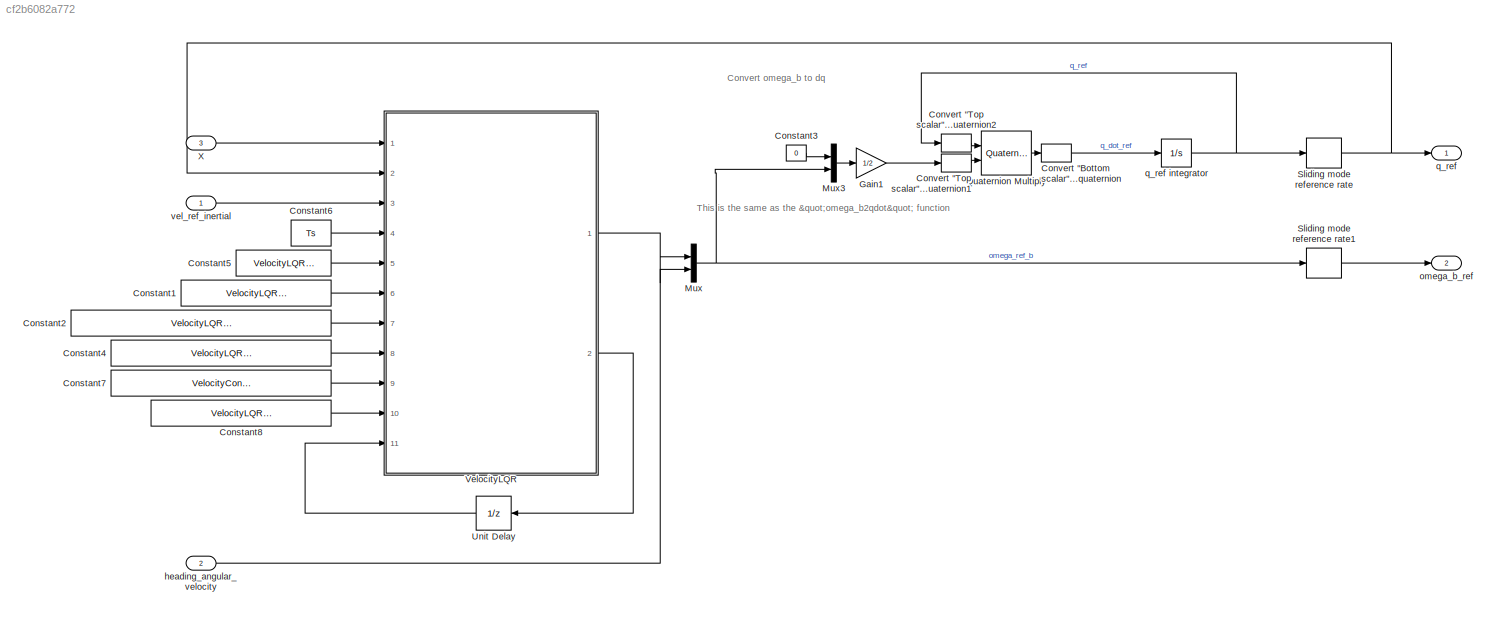
MODEL slx_cf2b6082a772
KIND model
CONFIG AbsTol = auto
CONFIG EnableMultiTasking = off
CONFIG FixedStep = auto
CONFIG InitFcn = Constants_Kugle\nConstants_nominal\n\nParameters_Controllers\nload('VelocityLQRgain.mat');
CONFIG MaxStep = 1e-2
CONFIG MinStep = auto
CONFIG PreLoadFcn = modelDir = fileparts(get_param(bdroot, 'FileName'));\naddpath(fullfile(modelDir,'../../Parameters'));\naddpath(fullfile(modelDir,'../../Controllers/VelocityLQR'));\naddpath(fullfile(modelDir,'../../Controllers/VelocityLQR/generated'));\n\nConstants_Kugle\nConstants_nominal\n\nParameters_Controllers\nload('VelocityLQRgain.mat');
CONFIG RelTol = 1e-5
CONFIG SampleTimeConstraint = Unconstrained
CONFIG Solver = VariableStepAuto
CONFIG SolverName = VariableStepAuto
CONFIG StartTime = 0.0
CONFIG StopTime = 10.0
BLOCK [Constant] Constant1
  SampleTime = -1
  Value = VelocityLQR_IntegralEnabled
BLOCK [Constant] Constant2
  SampleTime = -1
  Value = VelocityLQR_PositionControlAtZeroVelocityReference
BLOCK [Constant] Constant3
  Value = 0
BLOCK [Constant] Constant4
  SampleTime = -1
  Value = VelocityLQR_IntegratorPowerupStabilizeTime
BLOCK [Constant] Constant5
  SampleTime = -1
  Value = VelocityLQRgain
BLOCK [Constant] Constant6
  SampleTime = -1
  Value = Ts
BLOCK [Constant] Constant7
  SampleTime = -1
  Value = VelocityController_StabilizationDetectionVelocity
BLOCK [Constant] Constant8
  SampleTime = -1
  Value = VelocityLQR_MaximumKickinVelocity
BLOCK [Selector] Convert "Bottom scalar" quaternion to "Top scalar" quaternion
  IndexOptions = Index vector (dialog)
  Indices = [4 1 2 3]
  InputPortWidth = 4
  OutputSizes = 1
  Ports = [1, 1]
BLOCK [Selector] Convert "Top scalar" quaternion to "Bottom scalar" quaternion1
  IndexOptions = Index vector (dialog)
  Indices = [2 3 4 1]
  InputPortWidth = 4
  OutputSizes = 1
  Ports = [1, 1]
BLOCK [Selector] Convert "Top scalar" quaternion to "Bottom scalar" quaternion2
  IndexOptions = Index vector (dialog)
  Indices = [2 3 4 1]
  InputPortWidth = 4
  OutputSizes = 1
  Ports = [1, 1]
BLOCK [Gain] Gain1
  Gain = 1/2
  OutDataTypeStr = Inherit: Inherit via internal rule
  ParamDataTypeStr = Inherit: Inherit via internal rule
  SaturateOnIntegerOverflow = off
BLOCK [Mux] Mux
  DisplayOption = bar
  Inputs = 2
  Ports = [2, 1]
BLOCK [Mux] Mux3
  DisplayOption = bar
  Inputs = 2
  Ports = [2, 1]
BLOCK [Reference] Quaternion Multiply  REF=qlib/Quaternion  (lib defined in mdl_ab4d631060dc, slx_f623738634e3)
Multiply
  Ports = [2, 1]
  SourceBlock = qlib/Quaternion\nMultiply
  SourceType = Quaternion Multiply
BLOCK [ZeroOrderHold] Sliding mode reference rate
  SampleTime = Ts
BLOCK [ZeroOrderHold] Sliding mode reference rate1
  SampleTime = Ts
BLOCK [UnitDelay] Unit Delay
  InitialCondition = [0;0]
  InputProcessing = Elements as channels (sample based)
  SampleTime = Ts
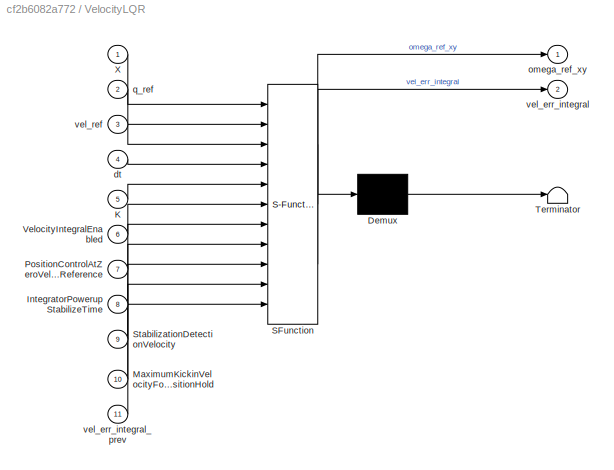
BLOCK [SubSystem] VelocityLQR
  ErrorFcn = Stateflow.Translate.translate
  MinAlgLoopOccurrences = on
  PermitHierarchicalResolution = ExplicitOnly
  Ports = [11, 2]
  RequestExecContextInheritance = off
  SFBlockType = MATLAB Function
  SystemSampleTime = Ts
  TreatAsAtomicUnit = on
BLOCK [Demux] VelocityLQR/ Demux 
  Outputs = 1
  Ports = [1, 1]
BLOCK [S-Function] VelocityLQR/ SFunction 
  EnableBusSupport = on
  FunctionName = sf_sfun
  PortCounts = [11 3]
  Ports = [11, 3]
  SFcnIsStateOwnerBlock = off
  SFunctionDeploymentMode = off
  Tag = Stateflow S-Function Velocity_LQR 2
BLOCK [Terminator] VelocityLQR/ Terminator 
BLOCK [Inport] VelocityLQR/IntegratorPowerupStabilizeTime
  IconDisplay = Port number
  Port = 8
BLOCK [Inport] VelocityLQR/K
  IconDisplay = Port number
  Port = 5
BLOCK [Inport] VelocityLQR/MaximumKickinVelocityForPositionHold
  IconDisplay = Port number
  Port = 10
BLOCK [Inport] VelocityLQR/PositionControlAtZeroVelocityReference
  IconDisplay = Port number
  Port = 7
BLOCK [Inport] VelocityLQR/StabilizationDetectionVelocity
  IconDisplay = Port number
  Port = 9
BLOCK [Inport] VelocityLQR/VelocityIntegralEnabled
  IconDisplay = Port number
  Port = 6
BLOCK [Inport] VelocityLQR/X
  IconDisplay = Port number
BLOCK [Inport] VelocityLQR/dt
  IconDisplay = Port number
  Port = 4
BLOCK [Outport] VelocityLQR/omega_ref_xy
  IconDisplay = Port number
BLOCK [Inport] VelocityLQR/q_ref
  IconDisplay = Port number
  Port = 2
BLOCK [Outport] VelocityLQR/vel_err_integral
  IconDisplay = Port number
  Port = 2
BLOCK [Inport] VelocityLQR/vel_err_integral_prev
  IconDisplay = Port number
  Port = 11
BLOCK [Inport] VelocityLQR/vel_ref
  IconDisplay = Port number
  Port = 3
BLOCK [Inport] X
  IconDisplay = Port number
  Port = 3
  PortDimensions = 12
BLOCK [Inport] heading_angular_velocity
  IconDisplay = Port number
  Port = 2
  PortDimensions = 1
BLOCK [Outport] omega_b_ref
  IconDisplay = Port number
  Port = 2
BLOCK [Outport] q_ref
  IconDisplay = Port number
BLOCK [Integrator] q_ref integrator
  InitialCondition = x_init(3:6)
  Ports = [1, 1]
BLOCK [Inport] vel_ref_inertial
  IconDisplay = Port number
  PortDimensions = 2
ANNOTATION (root): This is the same as the "omega_b2qdot" function
ANNOTATION (root): Convert omega_b to dq
LINE Constant1:1 -> VelocityLQR:6
LINE Constant2:1 -> VelocityLQR:7
LINE Constant3:1 -> Mux3:1
LINE Constant4:1 -> VelocityLQR:8
LINE Constant5:1 -> VelocityLQR:5
LINE Constant6:1 -> VelocityLQR:4
LINE Constant7:1 -> VelocityLQR:9
LINE Constant8:1 -> VelocityLQR:10
LINE Convert "Bottom scalar" quaternion to "Top scalar" quaternion:1 -> q_ref integrator:1
LINE Convert "Top scalar" quaternion to "Bottom scalar" quaternion1:1 -> Quaternion Multiply:2
LINE Convert "Top scalar" quaternion to "Bottom scalar" quaternion2:1 -> Quaternion Multiply:1
LINE Gain1:1 -> Convert "Top scalar" quaternion to "Bottom scalar" quaternion1:1
LINE Mux3:1 -> Gain1:1
NET Mux:1 -> Mux3:2, Sliding mode reference rate1:1
LINE Quaternion Multiply:1 -> Convert "Bottom scalar" quaternion to "Top scalar" quaternion:1
LINE Sliding mode reference rate1:1 -> omega_b_ref:1
NET Sliding mode reference rate:1 -> VelocityLQR:2, q_ref:1
LINE Unit Delay:1 -> VelocityLQR:11
LINE VelocityLQR:1 -> Mux:1
LINE VelocityLQR:2 -> Unit Delay:1
LINE X:1 -> VelocityLQR:1
LINE heading_angular_velocity:1 -> Mux:2
NET q_ref integrator:1 -> Convert "Top scalar" quaternion to "Bottom scalar" quaternion2:1, Sliding mode reference rate:1
LINE vel_ref_inertial:1 -> VelocityLQR:3
note: NET lines group one-source signal fan-out (src -> all destinations, sorted); 1:1 wires keep LINE
CHART VelocityLQR states=1 transitions=1
  STATE_LABEL 'eML_blk_kernel()'
  STATE_LABEL 'SCRIPT:\nfunction [omega_ref_xy, vel_err_integral] = VelocityLQR_(X, q_ref, vel_ref, dt, K, VelocityIntegralEnabled, PositionControlAtZeroVelocityReference, IntegratorPowerupStabilizeTime, StabilizationDetectionVelocity, MaximumKickinVelocityForPositionHold, vel_err_integral_prev)\n    [omega_ref_xy, vel_err_integral] = VelocityLQR(X, q_ref, vel_err_integral_prev, vel_ref, dt, K, VelocityIntegralEna...<+152ch>'
